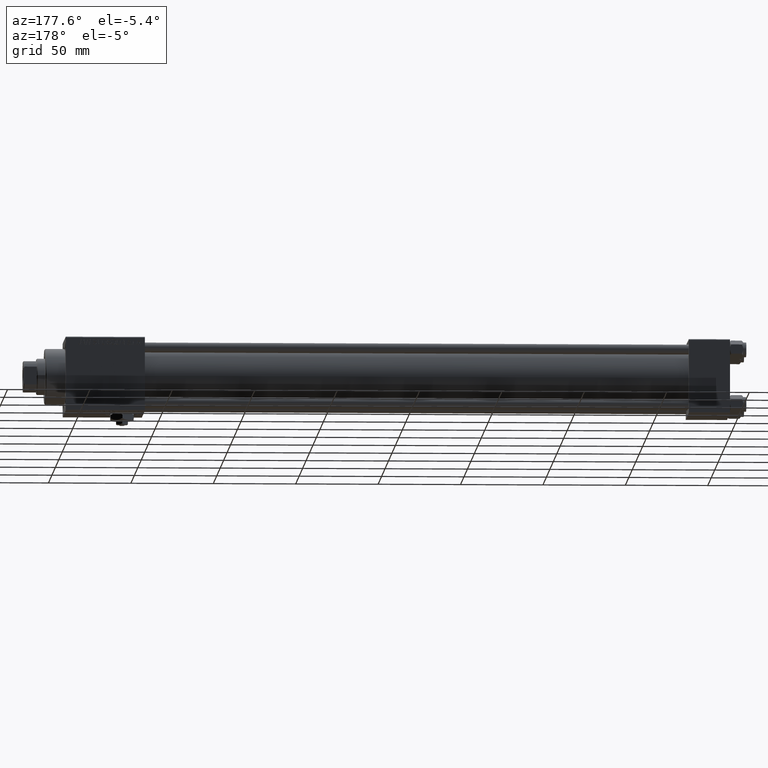
[diagram: clean part render]
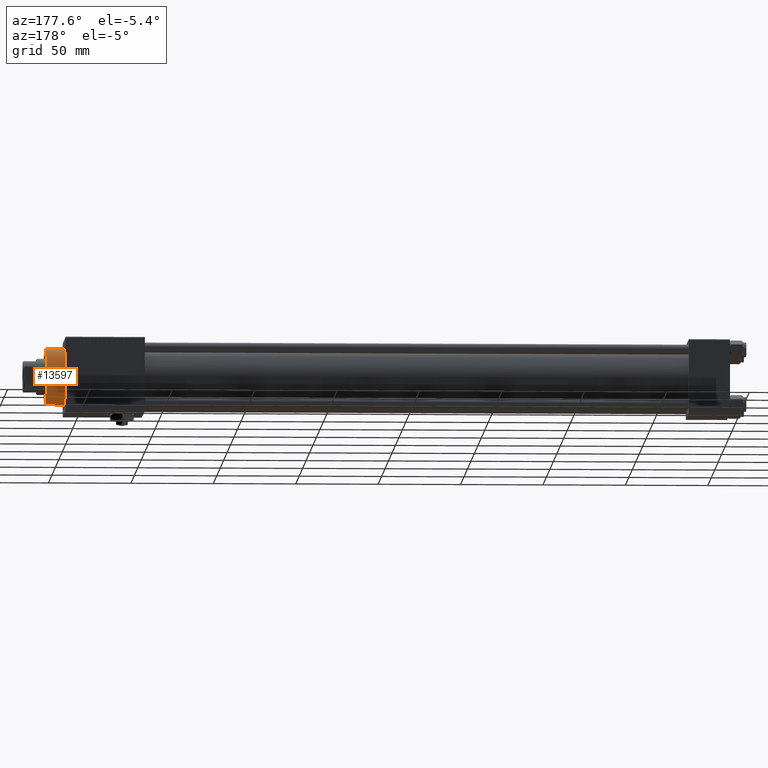
[diagram: same view with one face highlighted and labeled with its STEP entity id]
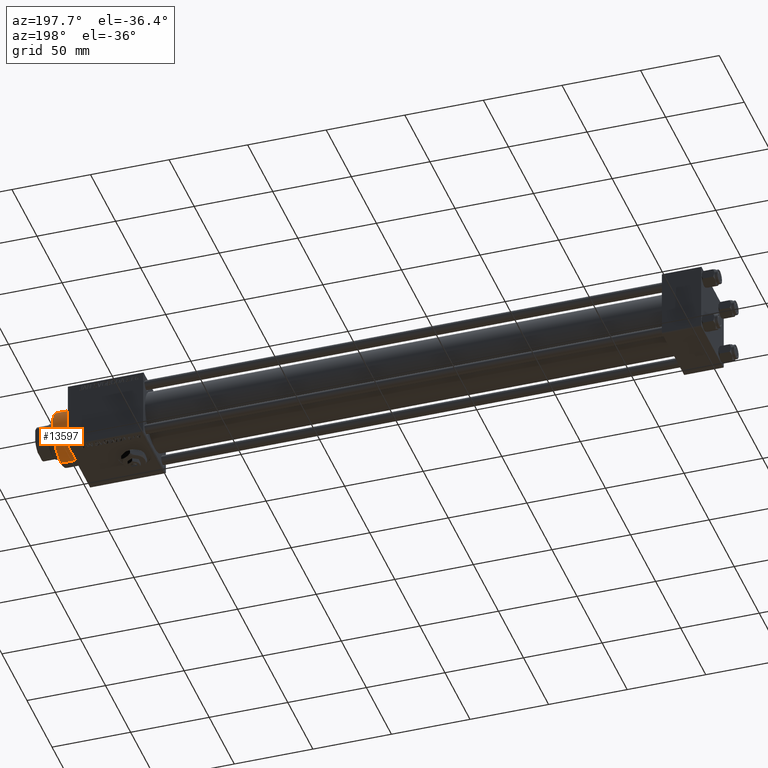
[diagram: same view with one face highlighted and labeled with its STEP entity id]
A machine part, auxiliary view. The second image highlights one B-rep face of the part: STEP entity #13597.
A second angle (auxiliary view) of the same face is appended — the face is thin or edge-on in the first view.
In plain terms, the highlighted cylindrical surface (edge-blend (fillet) strip) has radius 17 mm, axis along (-1, -0, -0).
Its self-contained STEP definition (entity closure, byte-faithful):
#3605 = VERTEX_POINT ( 'NONE', #47728 ) ;
#5882 = DIRECTION ( 'NONE',  ( -0.000000000000000000, -0.000000000000000000, -1.000000000000000000 ) ) ;
#6289 = CARTESIAN_POINT ( 'NONE',  ( 0.000000000000000000, 0.000000000000000000, 40.19999999999999574 ) ) ;
#6932 = CARTESIAN_POINT ( 'NONE',  ( 17.00000000000000000, 2.081899558550500280E-15, 40.19999999999999574 ) ) ;
#7675 = VERTEX_POINT ( 'NONE', #45192 ) ;
#7814 = VECTOR ( 'NONE', #17911, 1000.000000000000000 ) ;
#8155 = CARTESIAN_POINT ( 'NONE',  ( -17.00000000000000000, 0.000000000000000000, 28.69999999999999929 ) ) ;
#9828 = FACE_OUTER_BOUND ( 'NONE', #13284, .T. ) ;
#10338 = DIRECTION ( 'NONE',  ( -1.000000000000000000, 0.000000000000000000, 0.000000000000000000 ) ) ;
#10417 = DIRECTION ( 'NONE',  ( 0.000000000000000000, 0.000000000000000000, 1.000000000000000000 ) ) ;
#10559 = LINE ( 'NONE', #42039, #7814 ) ;
#10677 = CARTESIAN_POINT ( 'NONE',  ( 0.000000000000000000, 0.000000000000000000, 28.69999999999999929 ) ) ;
#10877 = LINE ( 'NONE', #22429, #39667 ) ;
#13284 = EDGE_LOOP ( 'NONE', ( #25621, #18586, #30855, #17853 ) ) ;
#13597 = ADVANCED_FACE ( 'NONE', ( #9828 ), #25838, .T. ) ;
#13614 = CIRCLE ( 'NONE', #42917, 17.00000000000000000 ) ;
#15116 = EDGE_CURVE ( 'NONE', #3605, #45972, #49642, .T. ) ;
#15843 = EDGE_CURVE ( 'NONE', #45972, #7675, #10877, .T. ) ;
#17853 = ORIENTED_EDGE ( 'NONE', *, *, #46335, .F. ) ;
#17911 = DIRECTION ( 'NONE',  ( -0.000000000000000000, -0.000000000000000000, -1.000000000000000000 ) ) ;
#18479 = DIRECTION ( 'NONE',  ( -0.000000000000000000, -0.000000000000000000, -1.000000000000000000 ) ) ;
#18586 = ORIENTED_EDGE ( 'NONE', *, *, #15843, .T. ) ;
#22429 = CARTESIAN_POINT ( 'NONE',  ( 17.00000000000000000, 2.081899558550500280E-15, 40.70000000000000284 ) ) ;
#23497 = VERTEX_POINT ( 'NONE', #8155 ) ;
#25621 = ORIENTED_EDGE ( 'NONE', *, *, #15116, .T. ) ;
#25838 = CYLINDRICAL_SURFACE ( 'NONE', #40421, 17.00000000000000000 ) ;
#27048 = AXIS2_PLACEMENT_3D ( 'NONE', #6289, #29663, #49560 ) ;
#29663 = DIRECTION ( 'NONE',  ( 0.000000000000000000, 0.000000000000000000, -1.000000000000000000 ) ) ;
#30855 = ORIENTED_EDGE ( 'NONE', *, *, #45735, .T. ) ;
#34559 = DIRECTION ( 'NONE',  ( 1.000000000000000000, 0.000000000000000000, 0.000000000000000000 ) ) ;
#39667 = VECTOR ( 'NONE', #18479, 1000.000000000000000 ) ;
#40421 = AXIS2_PLACEMENT_3D ( 'NONE', #41827, #5882, #10338 ) ;
#41827 = CARTESIAN_POINT ( 'NONE',  ( 0.000000000000000000, 0.000000000000000000, 40.70000000000000284 ) ) ;
#42039 = CARTESIAN_POINT ( 'NONE',  ( -17.00000000000000000, 0.000000000000000000, 40.70000000000000284 ) ) ;
#42917 = AXIS2_PLACEMENT_3D ( 'NONE', #10677, #10417, #34559 ) ;
#45192 = CARTESIAN_POINT ( 'NONE',  ( 17.00000000000000000, 2.081899558550500280E-15, 28.69999999999999929 ) ) ;
#45735 = EDGE_CURVE ( 'NONE', #7675, #23497, #13614, .T. ) ;
#45972 = VERTEX_POINT ( 'NONE', #6932 ) ;
#46335 = EDGE_CURVE ( 'NONE', #3605, #23497, #10559, .T. ) ;
#47728 = CARTESIAN_POINT ( 'NONE',  ( -17.00000000000000000, 0.000000000000000000, 40.19999999999999574 ) ) ;
#49560 = DIRECTION ( 'NONE',  ( 1.000000000000000000, 0.000000000000000000, 0.000000000000000000 ) ) ;
#49642 = CIRCLE ( 'NONE', #27048, 17.00000000000000000 ) ;